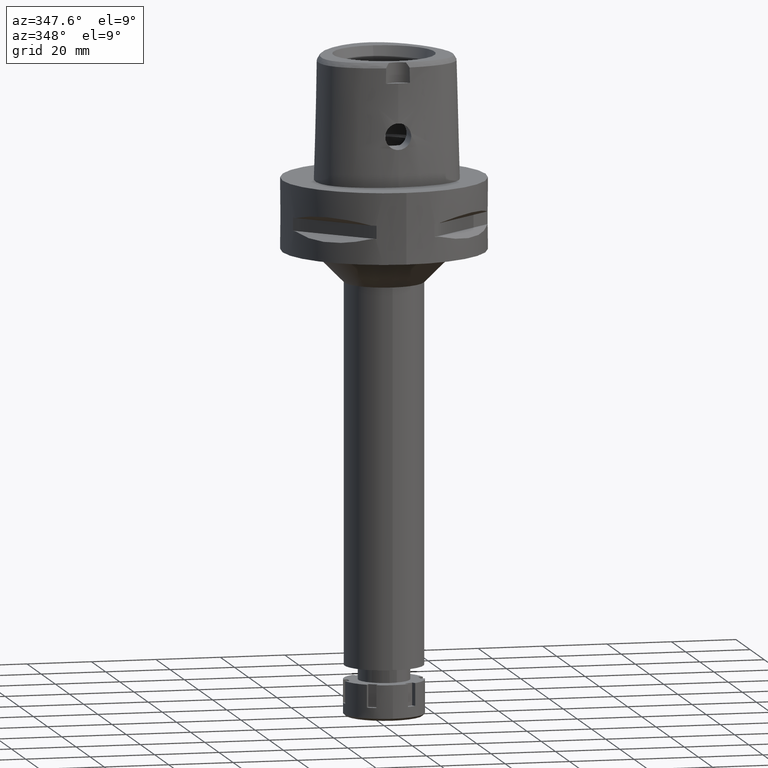
[diagram: clean part render]
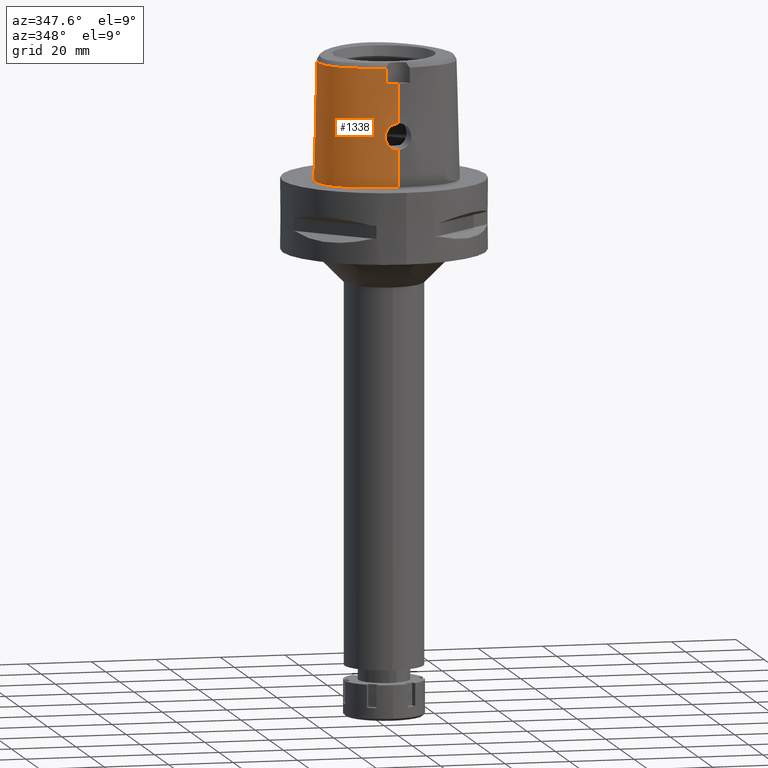
[diagram: same view with one face highlighted and labeled with its STEP entity id]
A machine part, auxiliary view. The second image highlights one B-rep face of the part: STEP entity #1338.
In plain terms, the highlighted face is a freeform B-spline surface patch.
Its self-contained STEP definition (entity closure, byte-faithful):
#8 = CARTESIAN_POINT ( 'NONE',  ( 0.7234356449526999633, 23.47140592420999639, -0.7304375800865000601 ) ) ;
#21 = CARTESIAN_POINT ( 'NONE',  ( -1.533511455571966220, -20.16025888516049847, 19.24845571507032460 ) ) ;
#47 = CARTESIAN_POINT ( 'NONE',  ( -1.678547993830835861, -20.33965717508473148, 11.81410234512160606 ) ) ;
#64 = CARTESIAN_POINT ( 'NONE',  ( -2.373090333116000039, 22.37624354572999863, 37.25231658441000349 ) ) ;
#72 = CARTESIAN_POINT ( 'NONE',  ( -3.736722311398999796, -19.67781602443999844, 31.80000000000000071 ) ) ;
#79 = CARTESIAN_POINT ( 'NONE',  ( -3.378917219878479816, -20.18042296661788271, 13.26717508011170210 ) ) ;
#93 = EDGE_CURVE ( 'NONE', #228, #3892, #1169, .T. ) ;
#105 = CARTESIAN_POINT ( 'NONE',  ( -1.975847471365936414, -20.32064467132769892, 11.96254614164943675 ) ) ;
#127 = CARTESIAN_POINT ( 'NONE',  ( -3.732637044260660897, -20.04856818254159734, 17.07161403142836065 ) ) ;
#155 = CARTESIAN_POINT ( 'NONE',  ( -2.887298006306513010, -20.23974971339215045, 12.65991565105038852 ) ) ;
#165 = CARTESIAN_POINT ( 'NONE',  ( 0.4439216921924000192, -19.74161857625000138, 37.25231658441000349 ) ) ;
#188 = CARTESIAN_POINT ( 'NONE',  ( -21.99640701348999983, -0.2778990166614000445, -0.7304375800865000601 ) ) ;
#211 = CARTESIAN_POINT ( 'NONE',  ( -2.376843896515567156, 22.39422508473656848, 36.52186244848006424 ) ) ;
#214 = CARTESIAN_POINT ( 'NONE',  ( -21.62788410575999976, -4.104079497862000103, 24.59139852958000105 ) ) ;
#228 = VERTEX_POINT ( 'NONE', #1132 ) ;
#249 = CARTESIAN_POINT ( 'NONE',  ( -17.88993660680000275, -13.52675025298000122, 37.25231658441000349 ) ) ;
#282 = CARTESIAN_POINT ( 'NONE',  ( -20.36546124296999949, -11.75800453082999830, -0.7304375800865000601 ) ) ;
#297 = CARTESIAN_POINT ( 'NONE',  ( 0.0000000000000000000, -20.18628283968999781, 19.55000000000000071 ) ) ;
#354 = ORIENTED_EDGE ( 'NONE', *, *, #4368, .T. ) ;
#359 = CARTESIAN_POINT ( 'NONE',  ( -3.258458186238625487, -20.07518877970046489, 17.91982202575023919 ) ) ;
#376 = CARTESIAN_POINT ( 'NONE',  ( -7.099337802551000109, 20.50831395171000082, 37.25231658441000349 ) ) ;
#377 = CARTESIAN_POINT ( 'NONE',  ( -7.571159453344118440, 21.31457034495507941, -1.499591555207020754E-06 ) ) ;
#409 = CARTESIAN_POINT ( 'NONE',  ( -1.251533273949682057, -19.88005341380086932, 31.80000012753036387 ) ) ;
#418 = CARTESIAN_POINT ( 'NONE',  ( -1.656557867863886147, -20.15608475847839642, 19.19752105506335127 ) ) ;
#469 = CARTESIAN_POINT ( 'NONE',  ( -2.840925263429451952, -20.10000581476814574, 18.38647058799804057 ) ) ;
#480 = CARTESIAN_POINT ( 'NONE',  ( -0.5821289287466999696, 22.88453099111999833, 24.59139852958000105 ) ) ;
#496 = CARTESIAN_POINT ( 'NONE',  ( -3.024136408352490868, -20.22444627912470594, 12.80466769080725520 ) ) ;
#529 = CARTESIAN_POINT ( 'NONE',  ( -3.522029659413189240, -20.16043548747500580, 13.49928467486039985 ) ) ;
#554 = CARTESIAN_POINT ( 'NONE',  ( -4.027507123327354499, -20.06787434564689576, 14.99842726719787400 ) ) ;
#576 = CARTESIAN_POINT ( 'NONE',  ( -3.848435446462692866, -20.04310701875513701, 16.79138261317725878 ) ) ;
#586 = CARTESIAN_POINT ( 'NONE',  ( -20.09084478133999951, -11.59945464217999955, 11.93048047475000040 ) ) ;
#619 = CARTESIAN_POINT ( 'NONE',  ( -21.26836746779000009, -8.910752261072000024, 11.93048047475000040 ) ) ;
#645 = CARTESIAN_POINT ( 'NONE',  ( -4.757642277158996791, 21.67478330407775999, 36.52186244848006424 ) ) ;
#647 = CARTESIAN_POINT ( 'NONE',  ( -21.31039837720000207, -4.105938496760999534, 37.25231658441000349 ) ) ;
#673 = CARTESIAN_POINT ( 'NONE',  ( -19.55745547456005795, -11.29150218116575921, 36.52186244848006424 ) ) ;
#676 = CARTESIAN_POINT ( 'NONE',  ( -10.91263711306000062, -18.01320810250000193, 37.25231658441000349 ) ) ;
#711 = CARTESIAN_POINT ( 'NONE',  ( -16.38077696136999961, -14.94316464912999898, 37.25231658441000349 ) ) ;
#722 = EDGE_CURVE ( 'NONE', #4364, #906, #1096, .T. ) ;
#738 = CARTESIAN_POINT ( 'NONE',  ( -10.15538788053286368, 18.47129535094242314, 36.52186244848006424 ) ) ;
#751 = CARTESIAN_POINT ( 'NONE',  ( -20.74942744426049046, 4.657187512782744676, -1.499591555207020754E-06 ) ) ;
#762 = CARTESIAN_POINT ( 'NONE',  ( 2.041042029990999821E-08, -19.88004246002000031, 31.80000004972000127 ) ) ;
#785 = ORIENTED_EDGE ( 'NONE', *, *, #93, .F. ) ;
#794 = EDGE_CURVE ( 'NONE', #4364, #3892, #2085, .T. ) ;
#811 = CARTESIAN_POINT ( 'NONE',  ( -20.93173255641817931, -10.60431642152609477, -1.499591555207020754E-06 ) ) ;
#812 = CARTESIAN_POINT ( 'NONE',  ( -6.933881406493999842E-13, -20.38876923348000147, 11.44999999999999929 ) ) ;
#820 = CARTESIAN_POINT ( 'NONE',  ( 0.0000000000000000000, -20.18628283968999781, 19.55000000000000071 ) ) ;
#833 = CARTESIAN_POINT ( 'NONE',  ( -10.75753573655000039, 19.18839675560999680, -0.7304375800865000601 ) ) ;
#883 = CARTESIAN_POINT ( 'NONE',  ( -3.637738201363999835, -19.56971413236999879, 36.52186244848000030 ) ) ;
#887 = CARTESIAN_POINT ( 'NONE',  ( 0.4441907078643000384, 22.53710793157999959, 37.25231658441000349 ) ) ;
#903 = CARTESIAN_POINT ( 'NONE',  ( -2.141741549216502616, -20.13611517949200902, 18.93769700923044041 ) ) ;
#906 = VERTEX_POINT ( 'NONE', #3983 ) ;
#926 = CARTESIAN_POINT ( 'NONE',  ( -3.788123932984848174, -20.11813248785017905, 14.06654490361962573 ) ) ;
#939 = CARTESIAN_POINT ( 'NONE',  ( -4.750826224779999940, 21.65775806874999887, 37.25231658441000349 ) ) ;
#956 = CARTESIAN_POINT ( 'NONE',  ( -3.404642689835821745, -20.17693293396818177, 13.30648216238636827 ) ) ;
#964 = VERTEX_POINT ( 'NONE', #3649 ) ;
#990 = CARTESIAN_POINT ( 'NONE',  ( -3.623131309216834239, -20.05420346129775666, 17.31085075802440798 ) ) ;
#1011 = CARTESIAN_POINT ( 'NONE',  ( -3.439520336072315221, -20.17214097397966199, 13.36117420418693946 ) ) ;
#1038 = CARTESIAN_POINT ( 'NONE',  ( -3.373031804187270666, -20.18121639258753675, 13.25829856262889273 ) ) ;
#1047 = CARTESIAN_POINT ( 'NONE',  ( -18.58171406405999804, -14.18198046378999955, -0.7304375800865000601 ) ) ;
#1074 = CARTESIAN_POINT ( 'NONE',  ( -17.27359245833026691, 9.972912913898261067, 36.52186244848006424 ) ) ;
#1076 = CARTESIAN_POINT ( 'NONE',  ( -18.35112157830999990, -13.96357039352000129, 11.93048047475000040 ) ) ;
#1081 = ORIENTED_EDGE ( 'NONE', *, *, #3097, .T. ) ;
#1096 = B_SPLINE_CURVE_WITH_KNOTS ( 'NONE', 3,
 ( #1977, #3710, #3368, #297 ),
 .UNSPECIFIED., .F., .F.,
 ( 4, 4 ),
 ( 0.0000000000000000000, 1.000000000000000000 ),
 .UNSPECIFIED. ) ;
#1105 = CARTESIAN_POINT ( 'NONE',  ( -21.76083716802000012, -6.805026051212000660, 11.93048047475000040 ) ) ;
#1130 = CARTESIAN_POINT ( 'NONE',  ( -21.13154892677999896, -6.714587083377000276, 37.25231658441000349 ) ) ;
#1132 = CARTESIAN_POINT ( 'NONE',  ( -3.637738201363999835, -19.56971413236999879, 36.52186244848000030 ) ) ;
#1162 = CARTESIAN_POINT ( 'NONE',  ( -22.07548128864000248, -6.850245535130000007, -0.7304375800865000601 ) ) ;
#1169 = B_SPLINE_CURVE_WITH_KNOTS ( 'NONE', 3,
 ( #883, #3999, #1850, #5243 ),
 .UNSPECIFIED., .F., .F.,
 ( 4, 4 ),
 ( 0.0000000000000000000, 1.000000000000000000 ),
 .UNSPECIFIED. ) ;
#1185 = CARTESIAN_POINT ( 'NONE',  ( -7.108589416785227044, 20.52412325828088058, 36.52186244848006424 ) ) ;
#1255 = CARTESIAN_POINT ( 'NONE',  ( -13.69241983457999901, 15.03666395353999974, 37.25231658441000349 ) ) ;
#1278 = CARTESIAN_POINT ( 'NONE',  ( -10.34823243682999916, 18.70095506128999929, 24.59139852958000105 ) ) ;
#1290 = CARTESIAN_POINT ( 'NONE',  ( -2.696297221291809265, -20.10826766487159034, 18.52327467490378154 ) ) ;
#1338 = ADVANCED_FACE ( 'NONE', ( #1739 ), #3788, .T. ) ;
#1347 = CARTESIAN_POINT ( 'NONE',  ( -3.686640039271674496, -20.05085371969676800, 17.17691650730359498 ) ) ;
#1375 = CARTESIAN_POINT ( 'NONE',  ( -3.755699594869652991, -20.12370835398185775, 13.98431559339710795 ) ) ;
#1401 = CARTESIAN_POINT ( 'NONE',  ( -1.812531856158389632, -20.33143503110750672, 11.87770907740327786 ) ) ;
#1430 = CARTESIAN_POINT ( 'NONE',  ( -3.744959948694878804, -20.12552913461118465, 13.95798024830288320 ) ) ;
#1449 = CARTESIAN_POINT ( 'NONE',  ( 3.796779487985000561E-11, 23.47499999999000053, 6.975901338060999311E-14 ) ) ;
#1453 = CARTESIAN_POINT ( 'NONE',  ( -4.050020239240829767, -20.05172727870755267, 15.52772083009887183 ) ) ;
#1460 = CARTESIAN_POINT ( 'NONE',  ( -1.836486898536999757, -19.76356470761999873, 37.25231658441000349 ) ) ;
#1488 = CARTESIAN_POINT ( 'NONE',  ( -14.36818034354000062, -16.67825731970000191, 24.59139852958000105 ) ) ;
#1518 = CARTESIAN_POINT ( 'NONE',  ( -20.36913780171999733, -10.35391846125000015, 24.59139852958000105 ) ) ;
#1544 = CARTESIAN_POINT ( 'NONE',  ( 0.4479792504544999887, -20.05810161160999883, 24.59139852958000105 ) ) ;
#1569 = CARTESIAN_POINT ( 'NONE',  ( -1.886862292098999916, -20.71358859662999663, -0.7304375800865000601 ) ) ;
#1614 = CARTESIAN_POINT ( 'NONE',  ( -5.543970344849000573E-12, -20.67499999999999716, 7.264559324463998182E-14 ) ) ;
#1664 = CARTESIAN_POINT ( 'NONE',  ( -10.14358078696999854, 18.45723421414000143, 37.25231658441000349 ) ) ;
#1665 = CARTESIAN_POINT ( 'NONE',  ( -14.40795641838449725, 15.64093752432406426, -1.499591555207020754E-06 ) ) ;
#1678 = CARTESIAN_POINT ( 'NONE',  ( -1.492692049810172117, -20.16161490772261899, 19.26495844333663143 ) ) ;
#1690 = CARTESIAN_POINT ( 'NONE',  ( -17.80867312146000003, 10.28184210893000206, 11.93048047475000040 ) ) ;
#1725 = CARTESIAN_POINT ( 'NONE',  ( -1.543155906916998887, -20.15993380737171137, 19.24449221917416253 ) ) ;
#1739 = FACE_OUTER_BOUND ( 'NONE', #2952, .T. ) ;
#1754 = CARTESIAN_POINT ( 'NONE',  ( -1.573175409423616777, -20.34568097891653338, 11.76802073981900953 ) ) ;
#1764 = CARTESIAN_POINT ( 'NONE',  ( -3.736722311398999796, -19.67781602443999844, 31.80000000000000071 ) ) ;
#1772 = CARTESIAN_POINT ( 'NONE',  ( -5.105252915175999995, 22.54305024007999947, -0.7304375800865000601 ) ) ;
#1785 = CARTESIAN_POINT ( 'NONE',  ( -1.036028639268787410, -20.37488265450533476, 11.54589121856474243 ) ) ;
#1812 = CARTESIAN_POINT ( 'NONE',  ( -3.740210223303226833, -20.04820644071449465, 17.05351258040912654 ) ) ;
#1838 = CARTESIAN_POINT ( 'NONE',  ( -3.738100423595284383, -20.04830683710419592, 17.05857473067102603 ) ) ;
#1850 = CARTESIAN_POINT ( 'NONE',  ( -3.704239276368590961, -19.64128040965313460, 33.37395414949332917 ) ) ;
#1867 = CARTESIAN_POINT ( 'NONE',  ( -3.647723961097686818, -20.14156542810641071, 13.73530131628640838 ) ) ;
#1876 = CARTESIAN_POINT ( 'NONE',  ( 0.6779535350899000834, -20.37023526533000251, 11.93048047475000040 ) ) ;
#1897 = CARTESIAN_POINT ( 'NONE',  ( -21.05621916129999960, -0.4440251502686000107, 37.25231658441000349 ) ) ;
#1924 = CARTESIAN_POINT ( 'NONE',  ( -7.300578999877685327, -19.07170748891925527, 36.52186244848006424 ) ) ;
#1926 = CARTESIAN_POINT ( 'NONE',  ( -18.12052909254999733, -13.74516032324999948, 24.59139852958000105 ) ) ;
#1960 = CARTESIAN_POINT ( 'NONE',  ( -14.68244496996000059, -17.23001772813000088, -0.7304375800865000601 ) ) ;
#1977 = CARTESIAN_POINT ( 'NONE',  ( 2.041042029990999821E-08, -19.88004246002000031, 31.80000004972000127 ) ) ;
#1988 = CARTESIAN_POINT ( 'NONE',  ( -6.232237598761999564, -19.68961187749999908, 24.59139852958000105 ) ) ;
#2056 = B_SPLINE_CURVE_WITH_KNOTS ( 'NONE', 3,
 ( #4174, #2473, #1924, #3240, #2358, #2893, #5340, #3211, #673, #4930, #4510, #2837, #4115, #4567, #4149, #1074, #3321, #738, #1185, #645, #211, #4960, #3662 ),
 .UNSPECIFIED., .F., .F.,
 ( 4, 1, 1, 1, 1, 1, 1, 1, 1, 1, 1, 1, 1, 1, 1, 1, 1, 1, 1, 1, 4 ),
 ( 0.0000000000000000000, 0.03580973941722431081, 0.1234633994701847537, 0.1672902294966124026, 0.2111170595230400793, 0.2549438895495728663, 0.2768573045627867324, 0.2987707195760005430, 0.3206841345892144091, 0.3425975496024281641, 0.3864243796289610899, 0.4302512096552835175, 0.4740780396818163878, 0.5617316997346716301, 0.6493853597877372597, 0.7370390198405926130, 0.8246926798934479663, 0.8685195099199808366, 0.9123463399464398771, 0.9561731699728887035, 1.000000000000000000 ),
 .UNSPECIFIED. ) ;
#2085 = B_SPLINE_CURVE_WITH_KNOTS ( 'NONE', 3,
 ( #3424, #409, #4357, #72 ),
 .UNSPECIFIED., .F., .F.,
 ( 4, 4 ),
 ( 0.0000000000000000000, 1.000000000000000000 ),
 .UNSPECIFIED. ) ;
#2109 = CARTESIAN_POINT ( 'NONE',  ( -4.868968454912000254, 21.95285545918999759, 24.59139852958000105 ) ) ;
#2110 = CARTESIAN_POINT ( 'NONE',  ( -22.24453911615382040, -4.100468749779352606, -1.499591555207020754E-06 ) ) ;
#2128 = CARTESIAN_POINT ( 'NONE',  ( -2.004946554099813927, -20.14219031904442048, 19.01961090509632868 ) ) ;
#2141 = CARTESIAN_POINT ( 'NONE',  ( -0.5985508206594999381, 23.20171281894999993, 11.93048047475000040 ) ) ;
#2142 = CARTESIAN_POINT ( 'NONE',  ( -2.113823675291989446, -20.67500003748731530, -1.499591555207020754E-06 ) ) ;
#2181 = CARTESIAN_POINT ( 'NONE',  ( -3.724367697018567291, -20.04896662180722799, 17.09120659050789470 ) ) ;
#2193 = CARTESIAN_POINT ( 'NONE',  ( -2.438150623833000186, 22.68791649098000107, 24.59139852958000105 ) ) ;
#2212 = CARTESIAN_POINT ( 'NONE',  ( -3.474608496678908587, -20.06254674854141484, 17.58500429058302572 ) ) ;
#2227 = VERTEX_POINT ( 'NONE', #812 ) ;
#2242 = CARTESIAN_POINT ( 'NONE',  ( -4.019667317128376993, -20.04319797611762510, 16.01149687265403543 ) ) ;
#2267 = CARTESIAN_POINT ( 'NONE',  ( -3.925430104254724384, -20.04100510367224430, 16.53130951953460936 ) ) ;
#2298 = CARTESIAN_POINT ( 'NONE',  ( -3.294693599458527355, -20.19174263028457261, 13.14094743667232201 ) ) ;
#2307 = CARTESIAN_POINT ( 'NONE',  ( -6.175998610016000256, -19.37631799264999799, 37.25231658441000349 ) ) ;
#2336 = CARTESIAN_POINT ( 'NONE',  ( -14.52531265674999972, -16.95413752390999917, 11.93048047475000040 ) ) ;
#2358 = CARTESIAN_POINT ( 'NONE',  ( -14.22011356156362893, -16.41829364186775564, 36.52186244848006424 ) ) ;
#2361 = CARTESIAN_POINT ( 'NONE',  ( -20.96392254535999911, -8.820258327669000309, 24.59139852958000105 ) ) ;
#2394 = CARTESIAN_POINT ( 'NONE',  ( -20.16779742988000024, 4.447573677398999337, 24.59139852958000105 ) ) ;
#2427 = CARTESIAN_POINT ( 'NONE',  ( -21.44619304739999777, -6.759806567294999624, 24.59139852958000105 ) ) ;
#2461 = CARTESIAN_POINT ( 'NONE',  ( -21.97832651499038548, -0.2810937434411994174, -1.499591555207020754E-06 ) ) ;
#2466 = LINE ( 'NONE', #3851, #2773 ) ;
#2473 = CARTESIAN_POINT ( 'NONE',  ( -4.467522189396163412, -19.48130287050861398, 36.52186244848006424 ) ) ;
#2491 = CARTESIAN_POINT ( 'NONE',  ( -14.67337966280904205, -17.21410159517789751, -1.499591555207020754E-06 ) ) ;
#2545 = CARTESIAN_POINT ( 'NONE',  ( -18.08416038101000112, 10.44089487087999935, -0.7304375800865000601 ) ) ;
#2602 = CARTESIAN_POINT ( 'NONE',  ( -17.53318586191000250, 10.12278934698000121, 24.59139852958000105 ) ) ;
#2617 = CARTESIAN_POINT ( 'NONE',  ( -2.467031803646660304, -20.12045714792764528, 18.71463355124592809 ) ) ;
#2627 = CARTESIAN_POINT ( 'NONE',  ( 0.6658293009012000718, 22.52368289141000091, 37.25231658441000349 ) ) ;
#2642 = CARTESIAN_POINT ( 'NONE',  ( -0.5052764329519543463, -20.38876923348000858, 11.45000000000000284 ) ) ;
#2653 = CARTESIAN_POINT ( 'NONE',  ( -10.55288408668999978, 18.94467590845000160, 11.93048047475000040 ) ) ;
#2669 = CARTESIAN_POINT ( 'NONE',  ( -2.870676439667704027, -20.24157259641097895, 12.64311214024347585 ) ) ;
#2696 = CARTESIAN_POINT ( 'NONE',  ( -3.649552918761305165, -20.05278137445528230, 17.25690594502786368 ) ) ;
#2718 = CARTESIAN_POINT ( 'NONE',  ( -3.089195988020756456, -20.21685458561823623, 12.88011891962703714 ) ) ;
#2746 = CARTESIAN_POINT ( 'NONE',  ( -1.592783463529866994, -20.34459380331131584, 11.77630631410351292 ) ) ;
#2754 = CARTESIAN_POINT ( 'NONE',  ( -19.86834437141999743, 4.339653689525999170, 37.25231658441000349 ) ) ;
#2773 = VECTOR ( 'NONE', #5536, 1000.000000000000114 ) ;
#2787 = CARTESIAN_POINT ( 'NONE',  ( -11.23887130166999881, -18.91049775780000175, -0.7304375800865000601 ) ) ;
#2812 = CARTESIAN_POINT ( 'NONE',  ( -18.89485289240000299, -12.27684381630000132, 37.25231658441000349 ) ) ;
#2837 = CARTESIAN_POINT ( 'NONE',  ( -21.14970188363965065, -6.717195958887406171, 36.52186244848006424 ) ) ;
#2839 = CARTESIAN_POINT ( 'NONE',  ( -20.76670354678000052, 4.663413653146999849, -0.7304375800865000601 ) ) ;
#2893 = CARTESIAN_POINT ( 'NONE',  ( -16.39211280191760878, -14.95758113319043225, 36.52186244848006424 ) ) ;
#2907 = CARTESIAN_POINT ( 'NONE',  ( -22.05732878048687695, -6.847636724106028971, -1.499591555207020754E-06 ) ) ;
#2952 = EDGE_LOOP ( 'NONE', ( #4501, #4655, #5156, #4723, #785, #354, #1081, #5216 ) ) ;
#2989 = CARTESIAN_POINT ( 'NONE',  ( -7.420053160114999713, 21.05635749107000265, 11.93048047475000040 ) ) ;
#2990 = CARTESIAN_POINT ( 'NONE',  ( -2.564517734663255499, 23.29328128691919275, -1.499591555207020754E-06 ) ) ;
#3002 = CARTESIAN_POINT ( 'NONE',  ( -2.823171496021004589, -20.10104368072843073, 18.40390846381805190 ) ) ;
#3019 = CARTESIAN_POINT ( 'NONE',  ( -0.5657070368339000010, 22.56734916327999585, 37.25231658441000349 ) ) ;
#3065 = CARTESIAN_POINT ( 'NONE',  ( -3.952973241255528958, -20.08624587561807573, 14.60894738505318813 ) ) ;
#3079 = CARTESIAN_POINT ( 'NONE',  ( -7.259695481332999911, 20.78233572138999818, 24.59139852958000105 ) ) ;
#3094 = CARTESIAN_POINT ( 'NONE',  ( -2.875633270581670065, -20.24102979138328351, 12.64810551045557396 ) ) ;
#3097 = EDGE_CURVE ( 'NONE', #964, #5294, #5418, .T. ) ;
#3124 = CARTESIAN_POINT ( 'NONE',  ( -3.699028711237809297, -20.13326891471061231, 13.84698179884405178 ) ) ;
#3151 = CARTESIAN_POINT ( 'NONE',  ( -3.555378551717142344, -20.15552821991809651, 13.55933742264236130 ) ) ;
#3175 = CARTESIAN_POINT ( 'NONE',  ( -1.758573507188912588, -20.33483936207428755, 11.85124969624674662 ) ) ;
#3182 = CARTESIAN_POINT ( 'NONE',  ( 0.6718639848710999951, -20.05378898328000048, 24.59139852958000105 ) ) ;
#3211 = CARTESIAN_POINT ( 'NONE',  ( -18.90964971338430090, -12.28759719904555681, 36.52186244848006424 ) ) ;
#3213 = CARTESIAN_POINT ( 'NONE',  ( -22.26285556288999956, -4.100361500063000264, -0.7304375800865000601 ) ) ;
#3240 = CARTESIAN_POINT ( 'NONE',  ( -10.91891098965425044, -18.03046406390314971, 36.52186244848006424 ) ) ;
#3242 = CARTESIAN_POINT ( 'NONE',  ( -19.15132530968000069, -12.46323155928999959, 24.59139852958000105 ) ) ;
#3266 = CARTESIAN_POINT ( 'NONE',  ( -11.02138184258999942, -18.31230465427000098, 24.59139852958000105 ) ) ;
#3295 = CARTESIAN_POINT ( 'NONE',  ( -16.57726041076999834, -15.19304470914999960, 24.59139852958000105 ) ) ;
#3321 = CARTESIAN_POINT ( 'NONE',  ( -13.70645028111142594, 15.04851272300495246, 36.52186244848006424 ) ) ;
#3338 = B_SPLINE_CURVE_WITH_KNOTS ( 'NONE', 3,
 ( #820, #4758, #3347, #3803, #4282, #5544, #4673, #3374, #1678, #5092, #21, #1725, #418, #4724, #5511, #2128, #3858, #903, #3883, #4647, #4315, #3744, #2617, #3433, #1290, #4339, #3002, #469, #3776, #5483, #4229, #359, #2212, #5310, #990, #2696, #1347, #3989, #2181, #127, #1838, #1812, #576, #2267, #4842, #2242, #5237, #3544, #4866, #3935, #1453, #4428, #554, #3065, #3575, #3904, #4786, #926, #4450, #1375, #5286, #1430, #3124, #1867, #3151, #529, #5258, #1011, #956, #4477, #79, #1038, #2298, #4019, #2718, #496, #4812, #3515, #155, #3094, #2669, #3599, #4401, #3966, #105, #1401, #3175, #47, #4890, #2746, #1754, #3488, #5212, #1785, #2642, #4365 ),
 .UNSPECIFIED., .F., .F.,
 ( 4, 2, 2, 1, 1, 1, 2, 2, 2, 2, 1, 2, 2, 2, 1, 1, 1, 2, 2, 2, 2, 2, 1, 1, 2, 2, 2, 2, 1, 2, 2, 2, 2, 1, 1, 1, 2, 2, 2, 2, 1, 1, 2, 2, 2, 1, 1, 1, 2, 2, 2, 2, 2, 1, 1, 2, 2, 4 ),
 ( 0.0000000000000000000, 0.06250000000000273392, 0.09375000000000421885, 0.1093750000000048295, 0.1171875000000049960, 0.1210937500000051348, 0.1230468750000052042, 0.1250000000000052736, 0.1562500000000082157, 0.1718750000000096867, 0.1796875000000104083, 0.1835937500000107692, 0.1875000000000111577, 0.2187500000000125733, 0.2343750000000135170, 0.2421875000000140443, 0.2460937500000142386, 0.2480468750000145717, 0.2500000000000148770, 0.3125000000000189848, 0.3437500000000210387, 0.3593750000000216493, 0.3671875000000223710, 0.3710937500000227041, 0.3730468750000224820, 0.3750000000000222600, 0.4375000000000139888, 0.4687500000000098255, 0.4843750000000077716, 0.4921875000000071609, 0.5000000000000065503, 0.5625000000000003331, 0.5937499999999971134, 0.6093749999999953371, 0.6171874999999942268, 0.6210937499999937828, 0.6230468749999932276, 0.6249999999999927836, 0.6562499999999896749, 0.6718749999999882316, 0.6796874999999874545, 0.6835937499999870104, 0.6855468749999868994, 0.6874999999999867883, 0.7187499999999863443, 0.7343749999999863443, 0.7421874999999863443, 0.7460937499999865663, 0.7480468749999866773, 0.7499999999999866773, 0.8124999999999921174, 0.8437499999999947820, 0.8593749999999961142, 0.8671874999999966693, 0.8710937499999968914, 0.8730468749999970024, 0.8749999999999971134, 1.000000000000000000 ),
 .UNSPECIFIED. ) ;
#3347 = CARTESIAN_POINT ( 'NONE',  ( -0.5041357072960096497, -20.18406821911007754, 19.52723308754548626 ) ) ;
#3361 = CARTESIAN_POINT ( 'NONE',  ( -16.95889174920334952, -15.67838870146760399, -1.499591555207020754E-06 ) ) ;
#3368 = CARTESIAN_POINT ( 'NONE',  ( 6.841606108190952851E-09, -20.08420636275932836, 23.63333344114093748 ) ) ;
#3374 = CARTESIAN_POINT ( 'NONE',  ( -1.435479731731278852, -20.16346186668281604, 19.28735383016574545 ) ) ;
#3391 = CARTESIAN_POINT ( 'NONE',  ( -14.42198651810999976, 15.65278600090999994, -0.7304375800865000601 ) ) ;
#3424 = CARTESIAN_POINT ( 'NONE',  ( 2.041042029990999821E-08, -19.88004246002000031, 31.80000004972000127 ) ) ;
#3433 = CARTESIAN_POINT ( 'NONE',  ( -2.620910454320242167, -20.11234871000621993, 18.58832188861279633 ) ) ;
#3446 = CARTESIAN_POINT ( 'NONE',  ( -2.503210914549999888, 22.99958943621999907, 11.93048047475000040 ) ) ;
#3488 = CARTESIAN_POINT ( 'NONE',  ( -1.560125442581332900, -20.34639974841502053, 11.76254649919940221 ) ) ;
#3503 = CARTESIAN_POINT ( 'NONE',  ( -4.987110685044000569, 22.24795284963000341, 11.93048047475000040 ) ) ;
#3515 = CARTESIAN_POINT ( 'NONE',  ( -2.904740653634549918, -20.23783060520592514, 12.67768464775376280 ) ) ;
#3544 = CARTESIAN_POINT ( 'NONE',  ( -4.044860985359925998, -20.04749655353601057, 15.72095293212820444 ) ) ;
#3575 = CARTESIAN_POINT ( 'NONE',  ( -3.921294970893740128, -20.09312966257153832, 14.47785977238648591 ) ) ;
#3599 = CARTESIAN_POINT ( 'NONE',  ( -2.647522161640763372, -20.26593589461928957, 12.41993733200600758 ) ) ;
#3608 = CARTESIAN_POINT ( 'NONE',  ( -20.07948507437999908, -10.22500070737999955, 37.25231658441000349 ) ) ;
#3634 = CARTESIAN_POINT ( 'NONE',  ( -14.21104803032999975, -16.40237711549000110, 37.25231658441000349 ) ) ;
#3649 = CARTESIAN_POINT ( 'NONE',  ( -1.813182554459000146E-11, 22.56201468012000078, 36.52186680743999858 ) ) ;
#3662 = CARTESIAN_POINT ( 'NONE',  ( -1.813182554459000146E-11, 22.56201468012000078, 36.52186680743999858 ) ) ;
#3664 = CARTESIAN_POINT ( 'NONE',  ( -6.344715576255000045, -20.31619964721000215, -0.7304375800865000601 ) ) ;
#3694 = CARTESIAN_POINT ( 'NONE',  ( -1.853278696390999958, -20.08023933728999921, 24.59139852958000105 ) ) ;
#3710 = CARTESIAN_POINT ( 'NONE',  ( 6.821606894350843031E-09, -19.98212988583096461, 27.71666688228178188 ) ) ;
#3723 = CARTESIAN_POINT ( 'NONE',  ( 0.6840430853087000607, -20.68668154738000098, -0.7304375800865000601 ) ) ;
#3744 = CARTESIAN_POINT ( 'NONE',  ( -2.360303563074223288, -20.12579123674484194, 18.79379445004763483 ) ) ;
#3776 = CARTESIAN_POINT ( 'NONE',  ( -2.852725281555878123, -20.09931334524933888, 18.37480908509441946 ) ) ;
#3788 = B_SPLINE_SURFACE_WITH_KNOTS ( 'NONE', 3, 3, ( 
 ( #8, #4297, #4770, #2627 ),
 ( #4351, #4798, #5556, #887 ),
 ( #3869, #2141, #480, #3019 ),
 ( #4685, #3446, #2193, #64 ),
 ( #1772, #3503, #2109, #939 ),
 ( #5523, #2989, #3079, #376 ),
 ( #833, #2653, #1278, #1664 ),
 ( #3391, #5159, #4267, #1255 ),
 ( #2545, #1690, #2602, #4326 ),
 ( #2839, #4569, #2394, #2754 ),
 ( #188, #5404, #5343, #1897 ),
 ( #3213, #4985, #214, #647 ),
 ( #1162, #1105, #2427, #1130 ),
 ( #5431, #619, #2361, #4151 ),
 ( #4117, #4537, #1518, #3608 ),
 ( #282, #586, #4084, #5377 ),
 ( #4933, #5318, #3242, #2812 ),
 ( #1047, #1076, #1926, #249 ),
 ( #4385, #4486, #3295, #711 ),
 ( #1960, #2336, #1488, #3634 ),
 ( #2787, #4512, #3266, #676 ),
 ( #3664, #4962, #1988, #2307 ),
 ( #1569, #4059, #3694, #1460 ),
 ( #5015, #4030, #1544, #165 ),
 ( #3723, #1876, #3182, #4898 ) ),
 .UNSPECIFIED., .F., .F., .F.,
 ( 4, 1, 1, 1, 1, 1, 1, 1, 1, 1, 1, 1, 1, 1, 1, 1, 1, 1, 1, 1, 1, 1, 4 ),
 ( 4, 4 ),
 ( -0.01173777939042000042, 0.0000000000000000000, 0.04166666666724999635, 0.08333333333387001052, 0.1250000000004999889, 0.1666666666672000086, 0.2500000000004000134, 0.3333333333335999904, 0.4166666666670000296, 0.5000000000001999512, 0.5416666666668999985, 0.5833333333333999837, 0.6250000000001000311, 0.6458333333333999837, 0.6666666666667000474, 0.6875000000000000000, 0.7083333333333000637, 0.7500000000000000000, 0.7916666666666000163, 0.8333333333332000326, 0.9166666666664999852, 1.000000000000000000, 1.008985696609000060 ),
 ( 4.013422282012000420E-09, 0.9999997953154000641 ),
 .UNSPECIFIED. ) ;
#3803 = CARTESIAN_POINT ( 'NONE',  ( -0.8945856573119729260, -20.17742435737030604, 19.45218689967082781 ) ) ;
#3825 = CARTESIAN_POINT ( 'NONE',  ( -5.543970344849000573E-12, -20.67499999999999716, 7.264559324463998182E-14 ) ) ;
#3843 = CARTESIAN_POINT ( 'NONE',  ( -18.56841067873252982, -14.16937990868193431, -1.499591555207020754E-06 ) ) ;
#3851 = CARTESIAN_POINT ( 'NONE',  ( -6.933881406493999842E-13, -20.38876923348000147, 11.44999999999999929 ) ) ;
#3858 = CARTESIAN_POINT ( 'NONE',  ( -2.095920934913082956, -20.13817625620801266, 18.96566852664972558 ) ) ;
#3869 = CARTESIAN_POINT ( 'NONE',  ( -0.6149727125723999377, 23.51889464678999886, -0.7304375800865000601 ) ) ;
#3883 = CARTESIAN_POINT ( 'NONE',  ( -2.187988573829964256, -20.13397303482931022, 18.90815865958333220 ) ) ;
#3892 = VERTEX_POINT ( 'NONE', #1764 ) ;
#3904 = CARTESIAN_POINT ( 'NONE',  ( -3.862670319764286209, -20.10459525844632722, 14.28058037401899583 ) ) ;
#3935 = CARTESIAN_POINT ( 'NONE',  ( -4.049668354669044845, -20.05093596202165784, 15.56089917110941201 ) ) ;
#3966 = CARTESIAN_POINT ( 'NONE',  ( -2.086662004794999525, -20.31268127563521375, 12.02638839297031659 ) ) ;
#3983 = CARTESIAN_POINT ( 'NONE',  ( 0.0000000000000000000, -20.18628283968999781, 19.55000000000000071 ) ) ;
#3989 = CARTESIAN_POINT ( 'NONE',  ( -3.704547339787188420, -20.04994126119381903, 17.13715336648647636 ) ) ;
#3999 = CARTESIAN_POINT ( 'NONE',  ( -3.671249123513567802, -19.60525173594972514, 34.94790829898666829 ) ) ;
#4019 = CARTESIAN_POINT ( 'NONE',  ( -3.215526995341309480, -20.20173576183459829, 13.03412874362219753 ) ) ;
#4030 = CARTESIAN_POINT ( 'NONE',  ( 0.4520368087166000137, -20.37458464695999538, 11.93048047475000040 ) ) ;
#4059 = CARTESIAN_POINT ( 'NONE',  ( -1.870070494244999937, -20.39691396695999615, 11.93048047475000040 ) ) ;
#4084 = CARTESIAN_POINT ( 'NONE',  ( -19.81622831970000220, -11.44090475352999903, 24.59139852958000105 ) ) ;
#4115 = CARTESIAN_POINT ( 'NONE',  ( -21.32871527669506051, -4.105831244393629120, 36.52186244848006424 ) ) ;
#4117 = CARTESIAN_POINT ( 'NONE',  ( -20.94844325638000271, -10.61175396898000045, -0.7304375800865000601 ) ) ;
#4149 = CARTESIAN_POINT ( 'NONE',  ( -19.88562090098298540, 4.345879983792337420, 36.52186244848006424 ) ) ;
#4151 = CARTESIAN_POINT ( 'NONE',  ( -20.65947762292000078, -8.729764394266000593, 37.25231658441000349 ) ) ;
#4174 = CARTESIAN_POINT ( 'NONE',  ( -3.637738201363999835, -19.56971413236999879, 36.52186244848000030 ) ) ;
#4184 = CARTESIAN_POINT ( 'NONE',  ( -11.23259758015346677, -18.89324222293135591, -1.499591555207020754E-06 ) ) ;
#4229 = CARTESIAN_POINT ( 'NONE',  ( -3.081106146077785102, -20.08580853919541553, 18.14635433980188495 ) ) ;
#4244 = CARTESIAN_POINT ( 'NONE',  ( -5.098437031276840337, 22.52602542558307164, -1.499591555207020754E-06 ) ) ;
#4267 = CARTESIAN_POINT ( 'NONE',  ( -13.93560872908999926, 15.24203796932999921, 24.59139852958000105 ) ) ;
#4282 = CARTESIAN_POINT ( 'NONE',  ( -1.025656898079125634, -20.17465608164540569, 19.42036563189156340 ) ) ;
#4297 = CARTESIAN_POINT ( 'NONE',  ( 0.7042335302689000098, 23.15549824661000144, 11.93048047475000040 ) ) ;
#4315 = CARTESIAN_POINT ( 'NONE',  ( -2.236153415285727419, -20.13171160814247429, 18.87674297724663575 ) ) ;
#4326 = CARTESIAN_POINT ( 'NONE',  ( -17.25769860234999697, 9.963736585033998949, 37.25231658441000349 ) ) ;
#4339 = CARTESIAN_POINT ( 'NONE',  ( -2.781372202971238217, -20.10345949974352564, 18.44421388672445161 ) ) ;
#4351 = CARTESIAN_POINT ( 'NONE',  ( 0.4823619556323999746, 23.48603817965999951, -0.7304375800865000601 ) ) ;
#4357 = CARTESIAN_POINT ( 'NONE',  ( -2.503154198992783019, -19.81241979316442681, 31.80000012753036387 ) ) ;
#4364 = VERTEX_POINT ( 'NONE', #762 ) ;
#4365 = CARTESIAN_POINT ( 'NONE',  ( -6.933881406493999842E-13, -20.38876923348000147, 11.44999999999999929 ) ) ;
#4368 = EDGE_CURVE ( 'NONE', #228, #964, #2056, .T. ) ;
#4385 = CARTESIAN_POINT ( 'NONE',  ( -16.97022730955000114, -15.69280482917999997, -0.7304375800865000601 ) ) ;
#4401 = CARTESIAN_POINT ( 'NONE',  ( -2.421272737349899007, -20.28648162103993258, 12.24262651721486250 ) ) ;
#4428 = CARTESIAN_POINT ( 'NONE',  ( -4.049829286978749110, -20.05866643351836487, 15.25290641861956509 ) ) ;
#4450 = CARTESIAN_POINT ( 'NONE',  ( -3.765619531578022094, -20.12201689240458435, 14.00897413268255320 ) ) ;
#4477 = CARTESIAN_POINT ( 'NONE',  ( -3.389265356476412361, -20.17902220974013261, 13.28291429009739488 ) ) ;
#4486 = CARTESIAN_POINT ( 'NONE',  ( -16.77374386015999974, -15.44292476915999934, 11.93048047475000040 ) ) ;
#4501 = ORIENTED_EDGE ( 'NONE', *, *, #5012, .F. ) ;
#4510 = CARTESIAN_POINT ( 'NONE',  ( -20.67704215116320654, -8.734985316449092707, 36.52186244848006424 ) ) ;
#4512 = CARTESIAN_POINT ( 'NONE',  ( -11.13012657212999912, -18.61140120602999914, 11.93048047475000040 ) ) ;
#4526 = CARTESIAN_POINT ( 'NONE',  ( -1.813182554459000146E-11, 22.56201468012000078, 36.52186680743999858 ) ) ;
#4537 = CARTESIAN_POINT ( 'NONE',  ( -20.65879052905000179, -10.48283621510999986, 11.93048047475000040 ) ) ;
#4567 = CARTESIAN_POINT ( 'NONE',  ( -21.07430010672615595, -0.4408303445192914838, 36.52186244848006424 ) ) ;
#4569 = CARTESIAN_POINT ( 'NONE',  ( -20.46725048833000216, 4.555493665272999593, 11.93048047475000040 ) ) ;
#4608 = CARTESIAN_POINT ( 'NONE',  ( -10.74572893483600744, 19.17433596637154025, -1.499591555207020754E-06 ) ) ;
#4633 = EDGE_CURVE ( 'NONE', #906, #2227, #3338, .T. ) ;
#4647 = CARTESIAN_POINT ( 'NONE',  ( -2.218905924395725648, -20.13252692328825333, 18.88811097025833874 ) ) ;
#4650 = CARTESIAN_POINT ( 'NONE',  ( 3.796779487985000561E-11, 23.47499999999000053, 6.975901338060999311E-14 ) ) ;
#4655 = ORIENTED_EDGE ( 'NONE', *, *, #4633, .F. ) ;
#4673 = CARTESIAN_POINT ( 'NONE',  ( -1.320866626971896940, -20.16697411650878635, 19.32965971007591222 ) ) ;
#4685 = CARTESIAN_POINT ( 'NONE',  ( -2.568271205268000124, 23.31126238145999707, -0.7304375800865000601 ) ) ;
#4710 = CARTESIAN_POINT ( 'NONE',  ( -19.64947368901493263, -12.82525392832759259, -1.499591555207020754E-06 ) ) ;
#4723 = ORIENTED_EDGE ( 'NONE', *, *, #794, .T. ) ;
#4724 = CARTESIAN_POINT ( 'NONE',  ( -1.769290236077637690, -20.15188564104941804, 19.14550049824853062 ) ) ;
#4758 = CARTESIAN_POINT ( 'NONE',  ( -0.2476349277127186943, -20.18628283969000847, 19.55000000000000782 ) ) ;
#4770 = CARTESIAN_POINT ( 'NONE',  ( 0.6850314155850000253, 22.83959056900999940, 24.59139852958000105 ) ) ;
#4786 = CARTESIAN_POINT ( 'NONE',  ( -3.830582834635707812, -20.11061303524487442, 14.18178188203595624 ) ) ;
#4798 = CARTESIAN_POINT ( 'NONE',  ( 0.4696382063763000492, 23.16972809696000013, 11.93048047475000040 ) ) ;
#4812 = CARTESIAN_POINT ( 'NONE',  ( -2.945056662729536701, -20.23335974770791168, 12.71951979027746127 ) ) ;
#4842 = CARTESIAN_POINT ( 'NONE',  ( -4.001073718362349041, -20.04211669945534524, 16.14143145179207650 ) ) ;
#4866 = CARTESIAN_POINT ( 'NONE',  ( -4.048201904855739386, -20.04950689277230680, 15.62483520886385335 ) ) ;
#4881 = B_SPLINE_CURVE_WITH_KNOTS ( 'NONE', 3,
 ( #1449, #5475, #2990, #4244, #377, #4608, #1665, #5445, #751, #2461, #2110, #2907, #5524, #811, #5135, #4710, #3843, #3361, #2491, #4184, #5107, #2142, #1614 ),
 .UNSPECIFIED., .F., .F.,
 ( 4, 1, 1, 1, 1, 1, 1, 1, 1, 1, 1, 1, 1, 1, 1, 1, 1, 1, 1, 1, 4 ),
 ( 0.0000000000000000000, 0.04166666666724999635, 0.08333333333387001052, 0.1250000000004999889, 0.1666666666672000086, 0.2500000000004000134, 0.3333333333335999904, 0.4166666666670000296, 0.5000000000001999512, 0.5416666666668999985, 0.5833333333333999837, 0.6250000000001000311, 0.6458333333333999837, 0.6666666666667000474, 0.6875000000000000000, 0.7083333333333000637, 0.7500000000000000000, 0.7916666666666000163, 0.8333333333332000326, 0.9166666666664999852, 1.000000000000000000 ),
 .UNSPECIFIED. ) ;
#4890 = CARTESIAN_POINT ( 'NONE',  ( -1.638762875749934400, -20.34199391073001806, 11.79616403447144179 ) ) ;
#4898 = CARTESIAN_POINT ( 'NONE',  ( 0.6657744346523001289, -19.73734270122999845, 37.25231658441000349 ) ) ;
#4930 = CARTESIAN_POINT ( 'NONE',  ( -20.09619618740928360, -10.23243843868046099, 36.52186244848006424 ) ) ;
#4933 = CARTESIAN_POINT ( 'NONE',  ( -19.66427014424999697, -12.83600704526999969, -0.7304375800865000601 ) ) ;
#4960 = CARTESIAN_POINT ( 'NONE',  ( -0.7901461696973178794, 22.56201478746574907, 36.52186244848007846 ) ) ;
#4962 = CARTESIAN_POINT ( 'NONE',  ( -6.288476587508999849, -20.00290576236000106, 11.93048047475000040 ) ) ;
#4975 = DIRECTION ( 'NONE',  ( 1.535575937446960561E-12, 0.02499051290971940689, -0.9996876883629751687 ) ) ;
#4985 = CARTESIAN_POINT ( 'NONE',  ( -21.94536983433000188, -4.102220498962999784, 11.93048047475000040 ) ) ;
#5012 = EDGE_CURVE ( 'NONE', #2227, #5047, #2466, .T. ) ;
#5015 = CARTESIAN_POINT ( 'NONE',  ( 0.4560943669786000076, -20.69106768230999904, -0.7304375800865000601 ) ) ;
#5047 = VERTEX_POINT ( 'NONE', #3825 ) ;
#5092 = CARTESIAN_POINT ( 'NONE',  ( -1.517187227776679359, -20.16080388944384438, 19.25509261511419012 ) ) ;
#5103 = VECTOR ( 'NONE', #4975, 1000.000000000000114 ) ;
#5107 = CARTESIAN_POINT ( 'NONE',  ( -6.341471025872973399, -20.29812503711446325, -1.499591555207020754E-06 ) ) ;
#5135 = CARTESIAN_POINT ( 'NONE',  ( -20.34961801809453874, -11.74885744064848048, -1.499591555207020754E-06 ) ) ;
#5155 = EDGE_CURVE ( 'NONE', #5294, #5047, #4881, .T. ) ;
#5156 = ORIENTED_EDGE ( 'NONE', *, *, #722, .F. ) ;
#5159 = CARTESIAN_POINT ( 'NONE',  ( -14.17879762359999951, 15.44741198512000047, 11.93048047475000040 ) ) ;
#5212 = CARTESIAN_POINT ( 'NONE',  ( -1.555094416682109681, -20.34667554096305508, 11.76044708272214301 ) ) ;
#5216 = ORIENTED_EDGE ( 'NONE', *, *, #5155, .T. ) ;
#5237 = CARTESIAN_POINT ( 'NONE',  ( -4.038047189179573948, -20.04588600821289646, 15.81762949444307331 ) ) ;
#5243 = CARTESIAN_POINT ( 'NONE',  ( -3.736722311398999796, -19.67781602443999844, 31.80000000000000071 ) ) ;
#5258 = CARTESIAN_POINT ( 'NONE',  ( -3.467735300017604327, -20.16817589423986590, 13.40749538291537135 ) ) ;
#5286 = CARTESIAN_POINT ( 'NONE',  ( -3.749024933915057645, -20.12484193209297345, 13.96788032053418682 ) ) ;
#5294 = VERTEX_POINT ( 'NONE', #4650 ) ;
#5310 = CARTESIAN_POINT ( 'NONE',  ( -3.538396763539117362, -20.05888067283561327, 17.47415606030410373 ) ) ;
#5318 = CARTESIAN_POINT ( 'NONE',  ( -19.40779772697000283, -12.64961930227999964, 11.93048047475000040 ) ) ;
#5340 = CARTESIAN_POINT ( 'NONE',  ( -17.90324032096994955, -13.53935111955749271, 36.52186244848006424 ) ) ;
#5343 = CARTESIAN_POINT ( 'NONE',  ( -21.36961511203000086, -0.3886497723995999687, 24.59139852958000105 ) ) ;
#5377 = CARTESIAN_POINT ( 'NONE',  ( -19.54161185806000134, -11.28235486487999850, 37.25231658441000349 ) ) ;
#5404 = CARTESIAN_POINT ( 'NONE',  ( -21.68301106275999857, -0.3332743945305000066, 11.93048047475000040 ) ) ;
#5418 = LINE ( 'NONE', #4526, #5103 ) ;
#5431 = CARTESIAN_POINT ( 'NONE',  ( -21.57281239023000197, -9.001246194474999740, -0.7304375800865000601 ) ) ;
#5445 = CARTESIAN_POINT ( 'NONE',  ( -18.06826691789614969, 10.43171876883688753, -1.499591555207020754E-06 ) ) ;
#5475 = CARTESIAN_POINT ( 'NONE',  ( -0.8548392449626041056, 23.47500003748844222, -1.499591555207020754E-06 ) ) ;
#5483 = CARTESIAN_POINT ( 'NONE',  ( -2.857701613779611183, -20.09902039673187346, 18.36986640665483606 ) ) ;
#5511 = CARTESIAN_POINT ( 'NONE',  ( -1.945188340973017738, -20.14472224014125601, 19.05290483600322560 ) ) ;
#5523 = CARTESIAN_POINT ( 'NONE',  ( -7.580410838896000314, 21.33037926075000001, -0.7304375800865000601 ) ) ;
#5524 = CARTESIAN_POINT ( 'NONE',  ( -21.55524829614848414, -8.996025401343159089, -1.499591555207020754E-06 ) ) ;
#5536 = DIRECTION ( 'NONE',  ( -4.234993284651874465E-13, -0.02499051295389925070, -0.9996876883618708298 ) ) ;
#5544 = CARTESIAN_POINT ( 'NONE',  ( -1.222436418486226861, -20.16967318534057796, 19.36171385434395376 ) ) ;
#5556 = CARTESIAN_POINT ( 'NONE',  ( 0.4569144571202999883, 22.85341801426999808, 24.59139852958000105 ) ) ;